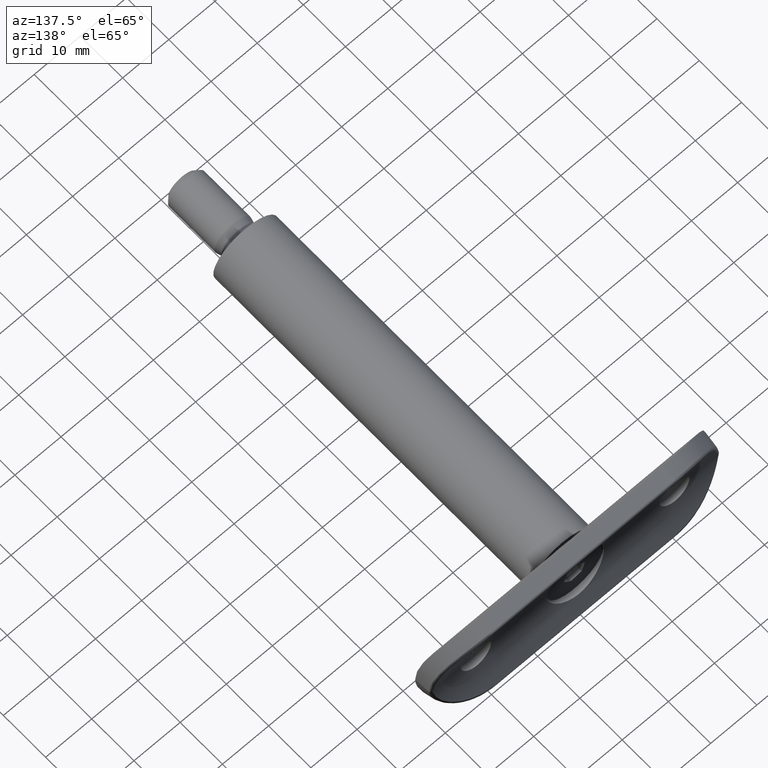
[diagram: clean part render]
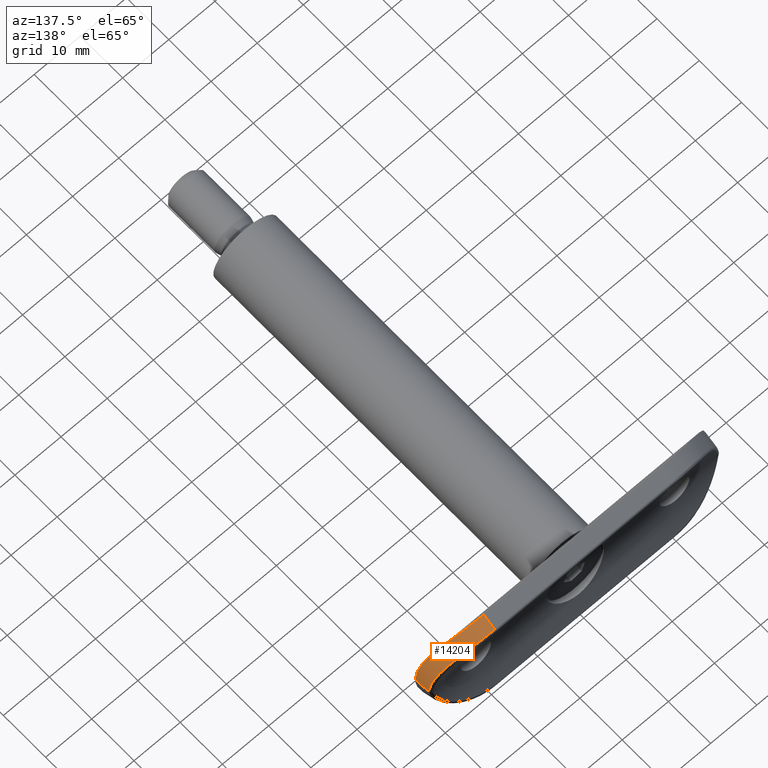
[diagram: same view with one face highlighted and labeled with its STEP entity id]
A machine part, auxiliary view. The second image highlights one B-rep face of the part: STEP entity #14204.
In plain terms, the highlighted cylindrical surface (partial cylindrical patch) has radius 12 mm, axis along (-0, 0.8741, -0.4858).
Its self-contained STEP definition (entity closure, byte-faithful):
#228 = CARTESIAN_POINT ( 'NONE',  ( 8.538757616669146300, 1.298744972214026700, -26.44274779239511400 ) ) ;
#300 = B_SPLINE_CURVE_WITH_KNOTS ( 'NONE', 3,
 ( #14333, #4000, #9642, #6294, #2709, #6338, #1741, #8640, #12172, #9840, #12077, #1692, #4043, #8588, #5089, #10815, #7359, #1646, #6246, #14382, #2913, #13253, #9784, #11010 ),
 .UNSPECIFIED., .F., .F.,
 ( 4, 2, 2, 2, 2, 2, 2, 2, 2, 2, 2, 4 ),
 ( 1.018549874411314200E-019, 0.002407596472457980000, 0.003611394708686971500, 0.004815192944915964300, 0.007222789417373949900, 0.008426587653602947100, 0.009630385889831942500, 0.01083418412606094000, 0.01203798236228993500, 0.01444557883474792900, 0.01685317530720592500, 0.01926077177966392000 ),
 .UNSPECIFIED. ) ;
#377 = CARTESIAN_POINT ( 'NONE',  ( 10.04062280470157400, 1.982199962630018200, -23.14366967859937000 ) ) ;
#537 = DIRECTION ( 'NONE',  ( -0.4858299595141712400, 0.8740533453047696400, 0.0000000000000000000 ) ) ;
#1086 = CARTESIAN_POINT ( 'NONE',  ( 1.835189502875478800, -0.3711457551946622000, -31.09134747255644600 ) ) ;
#1099 = VERTEX_POINT ( 'NONE', #4711 ) ;
#1347 = CARTESIAN_POINT ( 'NONE',  ( 7.894751655761194100, 1.043563230655478500, -27.32195453554994600 ) ) ;
#1401 = CARTESIAN_POINT ( 'NONE',  ( 8.732631405510833400, 1.380105572080483800, -26.13792390336023500 ) ) ;
#1455 = CARTESIAN_POINT ( 'NONE',  ( 9.569349463060191900, 1.752852787617590600, -24.53899358220072100 ) ) ;
#1567 = CARTESIAN_POINT ( 'NONE',  ( 5.507687913038736800, 0.2809070737397276200, -29.49489296990415000 ) ) ;
#1646 = CARTESIAN_POINT ( 'NONE',  ( 10.51579242464841400, -1.154463491023566500, -25.65865357391695400 ) ) ;
#1692 = CARTESIAN_POINT ( 'NONE',  ( 8.077189355929984800, -2.144204123385022000, -28.69694654420741700 ) ) ;
#1741 = CARTESIAN_POINT ( 'NONE',  ( 4.345683333910670000, -3.117644390435898100, -30.82586979659556500 ) ) ;
#2052 = CYLINDRICAL_SURFACE ( 'NONE', #3237, 12.00000000000000200 ) ;
#2269 = CARTESIAN_POINT ( 'NONE',  ( 2.905809991406898900, -0.2520860244392658100, -30.79258430663401900 ) ) ;
#2368 = CARTESIAN_POINT ( 'NONE',  ( 4.886493709250088600, 0.1276570117640407900, -29.87927491249999800 ) ) ;
#2673 = CARTESIAN_POINT ( 'NONE',  ( 9.269901498195480400, 1.612828249825286800, -25.19844563057117900 ) ) ;
#2709 = CARTESIAN_POINT ( 'NONE',  ( 3.186978305075531400, -3.296663330154672600, -31.15440249755115300 ) ) ;
#2796 = DIRECTION ( 'NONE',  ( -0.8740533453047695200, -0.4858299595141712400, 0.0000000000000000000 ) ) ;
#2913 = CARTESIAN_POINT ( 'NONE',  ( 11.64506833623742600, -0.5832138593540771000, -22.69272106915794800 ) ) ;
#2992 =( BOUNDED_CURVE ( )  B_SPLINE_CURVE ( 3, ( #11050, #14960, #5568, #8926 ),
 .UNSPECIFIED., .F., .T. ) 
 B_SPLINE_CURVE_WITH_KNOTS ( ( 4, 4 ),
 ( 1.447820046972164900, 1.570796326794896600 ),
 .UNSPECIFIED. ) 
 CURVE ( )  GEOMETRIC_REPRESENTATION_ITEM ( )  RATIONAL_B_SPLINE_CURVE ( ( 1.000000000000000000, 0.9987401332329100000, 0.9987401332329100000, 1.000000000000000000 ) ) 
 REPRESENTATION_ITEM ( '' )  );
#3237 = AXIS2_PLACEMENT_3D ( 'NONE', #9872, #537, #2796 ) ;
#3910 = EDGE_CURVE ( 'NONE', #7657, #1099, #2992, .T. ) ;
#3917 = CARTESIAN_POINT ( 'NONE',  ( 10.53971119023872100, 2.238077944829627500, -20.24777137648276300 ) ) ;
#4000 = CARTESIAN_POINT ( 'NONE',  ( 0.8129412476029719300, -3.500000000000001300, -31.50000000000000700 ) ) ;
#4011 = ORIENTED_EDGE ( 'NONE', *, *, #7953, .T. ) ;
#4043 = CARTESIAN_POINT ( 'NONE',  ( 8.365447555507348200, -2.042077026027277600, -28.43512920070712700 ) ) ;
#4711 = CARTESIAN_POINT ( 'NONE',  ( -5.975428329596222400E-016, -3.499999999999999600, -31.50000000000000000 ) ) ;
#4750 = CARTESIAN_POINT ( 'NONE',  ( 0.7404109976856186900, -0.4496605161124914200, -31.31444628284846100 ) ) ;
#4802 = CARTESIAN_POINT ( 'NONE',  ( 1.471476261503985800, -0.4031192296362735000, -31.17588060939954900 ) ) ;
#4982 = DIRECTION ( 'NONE',  ( -0.4858299595141711800, 0.8740533453047695200, 0.0000000000000000000 ) ) ;
#5089 = CARTESIAN_POINT ( 'NONE',  ( 9.168815601873276900, -1.736688008828345600, -27.59147257706481000 ) ) ;
#5476 = CARTESIAN_POINT ( 'NONE',  ( -4.165912745246785100E-015, -0.4701362392625519400, -31.40937530504016500 ) ) ;
#5568 = CARTESIAN_POINT ( 'NONE',  ( -3.269338926805214500E-015, -2.486856761535503900, -31.50000000000000000 ) ) ;
#5789 = ORIENTED_EDGE ( 'NONE', *, *, #11832, .F. ) ;
#5960 = CARTESIAN_POINT ( 'NONE',  ( 10.53971119023871600, 2.238077944829626200, -19.50000000000000400 ) ) ;
#6162 = CARTESIAN_POINT ( 'NONE',  ( 10.22228452745749500, 2.073518088803388600, -22.43040518664165700 ) ) ;
#6246 = CARTESIAN_POINT ( 'NONE',  ( 10.86486654361806200, -0.9843359645018946400, -24.95505419486224600 ) ) ;
#6294 = CARTESIAN_POINT ( 'NONE',  ( 2.796109589762970900, -3.344419946068636100, -31.23832297120842600 ) ) ;
#6338 = CARTESIAN_POINT ( 'NONE',  ( 3.961919930534429500, -3.183324947430789600, -30.94830242344761800 ) ) ;
#6527 = B_SPLINE_CURVE_WITH_KNOTS ( 'NONE', 3,
 ( #6674, #11719, #4750, #4802, #1086, #2269, #11558, #6973, #2368, #1567, #11831, #7173, #12907, #1347, #13006, #228, #1401, #2673, #1455, #14254, #377, #6162, #7326, #13060, #3917, #5960 ),
 .UNSPECIFIED., .F., .F.,
 ( 4, 2, 2, 2, 2, 2, 2, 2, 2, 2, 2, 2, 4 ),
 ( 3.008635295775243700E-019, 0.001118234125172541000, 0.002236468250345082000, 0.004472936500690163200, 0.005591170625862701400, 0.006709404751035240500, 0.008945873001380317800, 0.01006410712655285600, 0.01118234125172539100, 0.01341880950207046200, 0.01453704362724299800, 0.01565527775241553500, 0.01789174600276060100 ),
 .UNSPECIFIED. ) ;
#6643 = CARTESIAN_POINT ( 'NONE',  ( 12.00000000000000200, -0.3891176290278198800, -19.50000000000000400 ) ) ;
#6674 = CARTESIAN_POINT ( 'NONE',  ( -4.165912745246785100E-015, -0.4701362392625519400, -31.40937530504016500 ) ) ;
#6801 = EDGE_LOOP ( 'NONE', ( #14496, #4011, #13700, #5789 ) ) ;
#6973 = CARTESIAN_POINT ( 'NONE',  ( 4.567942503128776400, 0.05582271291679386700, -30.05491169464928400 ) ) ;
#7173 = CARTESIAN_POINT ( 'NONE',  ( 6.665760389367128400, 0.6098249306462657500, -28.62862387784112200 ) ) ;
#7326 = CARTESIAN_POINT ( 'NONE',  ( 10.29759581758889200, 2.112088555418223400, -22.07087987615994300 ) ) ;
#7359 = CARTESIAN_POINT ( 'NONE',  ( 9.882580253765647500, -1.437978920396823800, -26.65824030469762500 ) ) ;
#7657 = VERTEX_POINT ( 'NONE', #5476 ) ;
#7842 = FACE_OUTER_BOUND ( 'NONE', #6801, .T. ) ;
#7953 = EDGE_CURVE ( 'NONE', #7657, #8489, #6527, .T. ) ;
#8489 = VERTEX_POINT ( 'NONE', #11444 ) ;
#8588 = CARTESIAN_POINT ( 'NONE',  ( 8.911261608662778500, -1.838321853592151500, -27.88239206832154700 ) ) ;
#8640 = CARTESIAN_POINT ( 'NONE',  ( 5.458459083564774200, -2.901169967168792500, -30.40738950800777500 ) ) ;
#8926 = CARTESIAN_POINT ( 'NONE',  ( -5.975428329596222400E-016, -3.499999999999999600, -31.50000000000000000 ) ) ;
#9266 = LINE ( 'NONE', #11957, #9815 ) ;
#9642 = CARTESIAN_POINT ( 'NONE',  ( 1.613878791505601200, -3.459937399638181700, -31.43733599986672200 ) ) ;
#9784 = CARTESIAN_POINT ( 'NONE',  ( 12.00000000000000500, -0.3891176290278224900, -20.31369094222388900 ) ) ;
#9815 = VECTOR ( 'NONE', #4982, 1000.000000000000100 ) ;
#9840 = CARTESIAN_POINT ( 'NONE',  ( 7.147371149447641500, -2.445773758848734900, -29.42307681136129500 ) ) ;
#9872 = CARTESIAN_POINT ( 'NONE',  ( 1.511359856342766200, -6.219077143197874400, -19.50000000000000400 ) ) ;
#10815 = CARTESIAN_POINT ( 'NONE',  ( 9.653965207986139800, -1.536749814308946600, -26.98022621720533500 ) ) ;
#11010 = CARTESIAN_POINT ( 'NONE',  ( 12.00000000000000200, -0.3891176290278198800, -19.50000000000000400 ) ) ;
#11050 = CARTESIAN_POINT ( 'NONE',  ( -4.165912745246785100E-015, -0.4701362392625519400, -31.40937530504016500 ) ) ;
#11444 = CARTESIAN_POINT ( 'NONE',  ( 10.53971119023871600, 2.238077944829626200, -19.50000000000000400 ) ) ;
#11558 = CARTESIAN_POINT ( 'NONE',  ( 3.589126953104927200, -0.1425766935508010500, -30.53490663537369400 ) ) ;
#11719 = CARTESIAN_POINT ( 'NONE',  ( 0.3717157821171419600, -0.4643916539096136200, -31.36887278765312100 ) ) ;
#11831 = CARTESIAN_POINT ( 'NONE',  ( 5.807837735107582100, 0.3617548896867346400, -29.28748829787575400 ) ) ;
#11832 = EDGE_CURVE ( 'NONE', #1099, #12022, #300, .T. ) ;
#11957 = CARTESIAN_POINT ( 'NONE',  ( 12.00000000000000200, -0.3891176290278198800, -19.50000000000000400 ) ) ;
#12022 = VERTEX_POINT ( 'NONE', #6643 ) ;
#12077 = CARTESIAN_POINT ( 'NONE',  ( 7.468358965609676000, -2.346049953370364700, -29.19099359684591400 ) ) ;
#12172 = CARTESIAN_POINT ( 'NONE',  ( 6.158843963928769800, -2.729662869301813500, -30.05830163374236700 ) ) ;
#12907 = CARTESIAN_POINT ( 'NONE',  ( 7.186626295999047000, 0.7838569578975459500, -28.13755154511082100 ) ) ;
#13006 = CARTESIAN_POINT ( 'NONE',  ( 8.119630012388041600, 1.130367664769256000, -27.03523480616932800 ) ) ;
#13060 = CARTESIAN_POINT ( 'NONE',  ( 10.47855176280993000, 2.205503992355610300, -20.98378448394305100 ) ) ;
#13253 = CARTESIAN_POINT ( 'NONE',  ( 11.92859431294146200, -0.4292547332370143000, -21.11482056701557800 ) ) ;
#13700 = ORIENTED_EDGE ( 'NONE', *, *, #15007, .F. ) ;
#14204 = ADVANCED_FACE ( 'NONE', ( #7842 ), #2052, .T. ) ;
#14254 = CARTESIAN_POINT ( 'NONE',  ( 9.933564340798477900, 1.929111303165168800, -23.49922711695877800 ) ) ;
#14333 = CARTESIAN_POINT ( 'NONE',  ( -5.975428329596222400E-016, -3.499999999999999600, -31.50000000000000000 ) ) ;
#14382 = CARTESIAN_POINT ( 'NONE',  ( 11.42949741348638400, -0.6987825248718153600, -23.47544721763576800 ) ) ;
#14496 = ORIENTED_EDGE ( 'NONE', *, *, #3910, .F. ) ;
#14960 = CARTESIAN_POINT ( 'NONE',  ( -3.718901014066856800E-015, -1.475628161315674100, -31.46975366199063700 ) ) ;
#15007 = EDGE_CURVE ( 'NONE', #12022, #8489, #9266, .T. ) ;